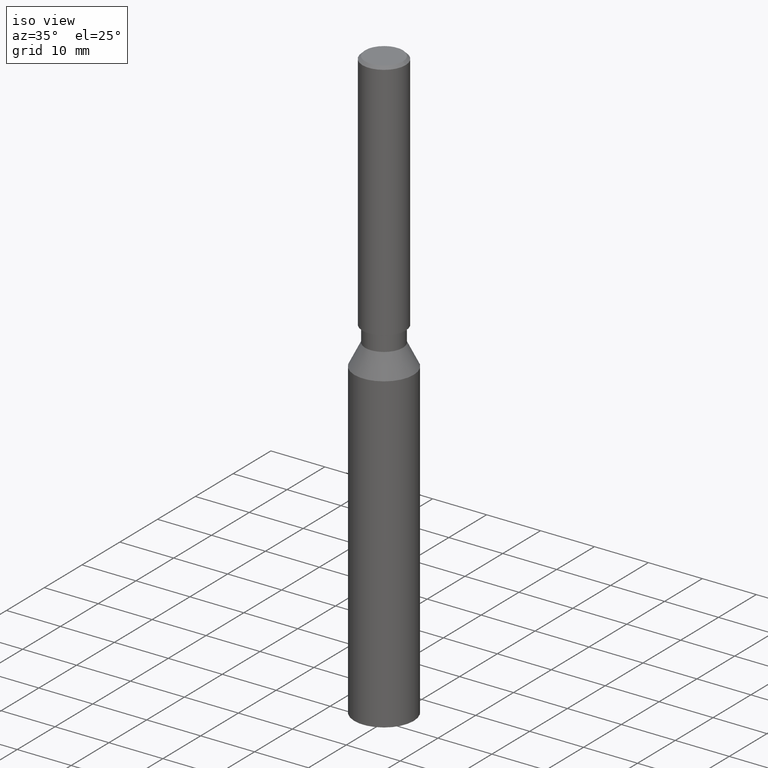
[diagram: clean part render]
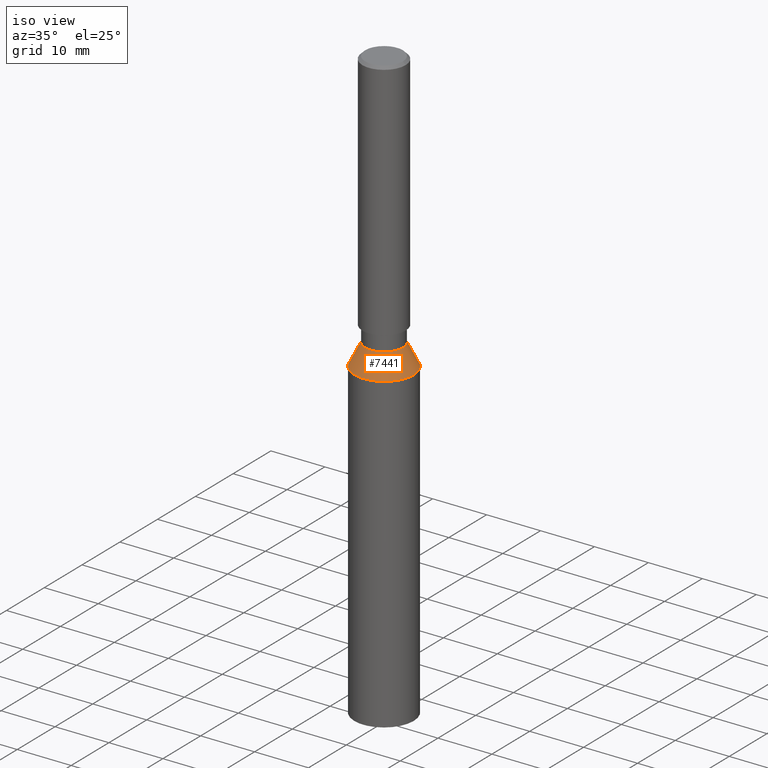
[diagram: same view with one face highlighted and labeled with its STEP entity id]
A machine part, iso view. The second image highlights one B-rep face of the part: STEP entity #7441.
In plain terms, the highlighted conical surface has half-angle 26.565 deg.
Its self-contained STEP definition (entity closure, byte-faithful):
#34 = EDGE_LOOP ( 'NONE', ( #1224 ) ) ;
#164 = AXIS2_PLACEMENT_3D ( 'NONE', #6819, #12398, #6866 ) ;
#197 = CARTESIAN_POINT ( 'NONE',  ( 0.000000000000000000, 0.000000000000000000, 62.00000000000000000 ) ) ;
#303 = DIRECTION ( 'NONE',  ( -0.000000000000000000, -0.000000000000000000, -1.000000000000000000 ) ) ;
#416 = CARTESIAN_POINT ( 'NONE',  ( -3.500000000000007994, 0.000000000000000000, 62.00000000000000000 ) ) ;
#1129 = EDGE_CURVE ( 'NONE', #12379, #12379, #3465, .T. ) ;
#1224 = ORIENTED_EDGE ( 'NONE', *, *, #13600, .T. ) ;
#2389 = DIRECTION ( 'NONE',  ( -1.000000000000000000, 0.000000000000000000, 0.000000000000000000 ) ) ;
#3204 = DIRECTION ( 'NONE',  ( -1.000000000000000000, 0.000000000000000000, 0.000000000000000000 ) ) ;
#3465 = CIRCLE ( 'NONE', #4475, 5.500000000000005329 ) ;
#4475 = AXIS2_PLACEMENT_3D ( 'NONE', #9846, #13320, #3204 ) ;
#5067 = EDGE_LOOP ( 'NONE', ( #7246 ) ) ;
#6819 = CARTESIAN_POINT ( 'NONE',  ( 0.000000000000000000, 0.000000000000000000, 58.00000000000000000 ) ) ;
#6866 = DIRECTION ( 'NONE',  ( -1.000000000000000000, 0.000000000000000000, 0.000000000000000000 ) ) ;
#7246 = ORIENTED_EDGE ( 'NONE', *, *, #1129, .F. ) ;
#7441 = ADVANCED_FACE ( 'NONE', ( #10635, #13414 ), #13066, .T. ) ;
#7528 = CIRCLE ( 'NONE', #11553, 3.500000000000007994 ) ;
#9846 = CARTESIAN_POINT ( 'NONE',  ( 0.000000000000000000, 0.000000000000000000, 58.00000000000000000 ) ) ;
#9920 = VERTEX_POINT ( 'NONE', #416 ) ;
#10635 = FACE_BOUND ( 'NONE', #34, .T. ) ;
#11553 = AXIS2_PLACEMENT_3D ( 'NONE', #197, #303, #2389 ) ;
#11686 = CARTESIAN_POINT ( 'NONE',  ( -5.500000000000005329, 0.000000000000000000, 58.00000000000000000 ) ) ;
#12379 = VERTEX_POINT ( 'NONE', #11686 ) ;
#12398 = DIRECTION ( 'NONE',  ( -0.000000000000000000, -0.000000000000000000, -1.000000000000000000 ) ) ;
#13066 = CONICAL_SURFACE ( 'NONE', #164, 5.500000000000005329, 0.4636476090008060935 ) ;
#13320 = DIRECTION ( 'NONE',  ( -0.000000000000000000, -0.000000000000000000, -1.000000000000000000 ) ) ;
#13414 = FACE_OUTER_BOUND ( 'NONE', #5067, .T. ) ;
#13600 = EDGE_CURVE ( 'NONE', #9920, #9920, #7528, .T. ) ;